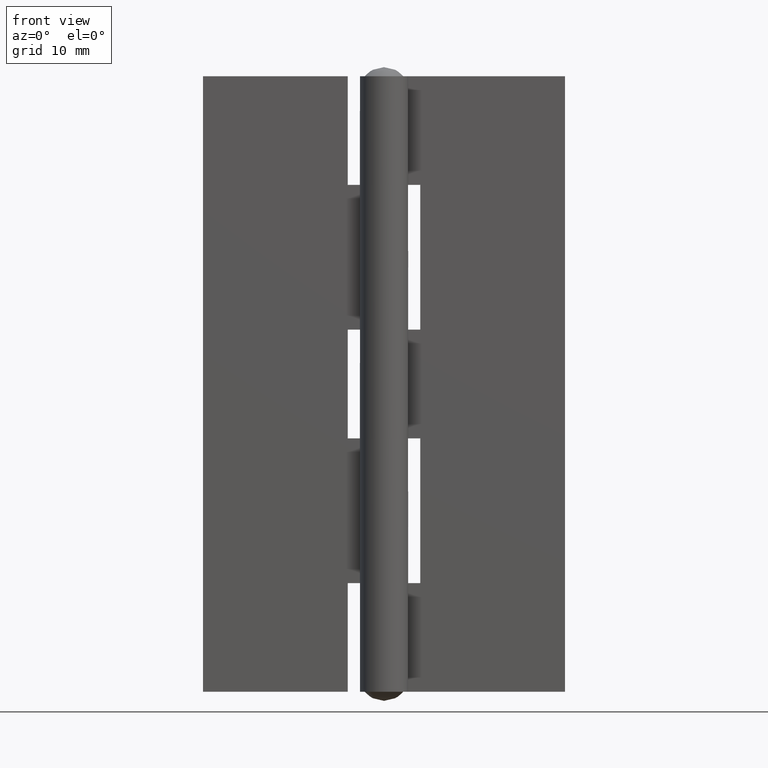
[diagram: clean part render]
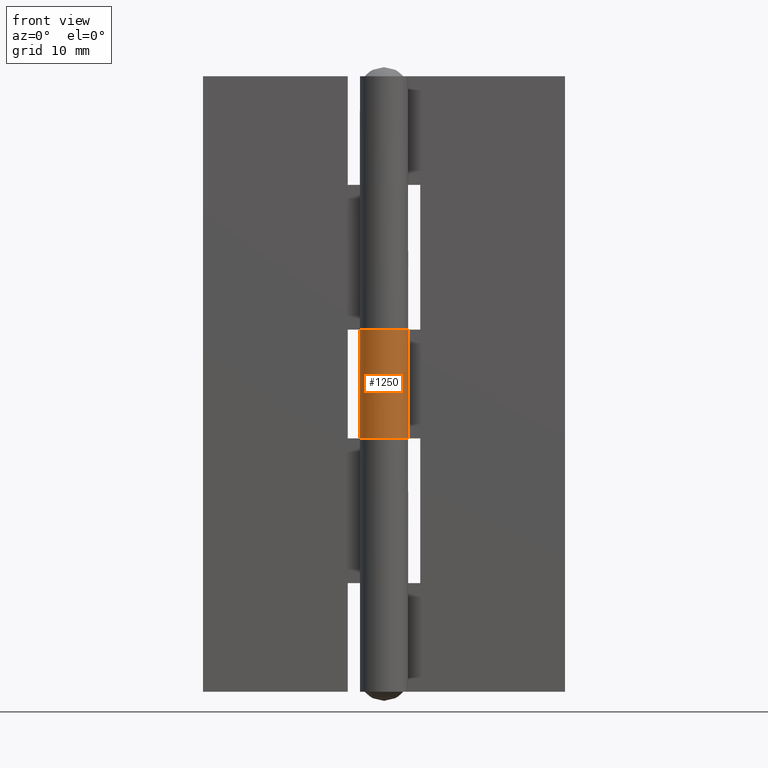
[diagram: same view with one face highlighted and labeled with its STEP entity id]
A machine part, front view. The second image highlights one B-rep face of the part: STEP entity #1250.
In plain terms, the highlighted face is a freeform B-spline surface patch.
Its self-contained STEP definition (entity closure, byte-faithful):
#876=CARTESIAN_POINT('',(1.636306817195370,1.150000000000000,30.0));
#877=VERTEX_POINT('',#876);
#883=CARTESIAN_POINT('',(1.636306817195370,1.150000000000000,21.0));
#884=VERTEX_POINT('',#883);
#885=CARTESIAN_POINT('',(1.636306817195370,1.150000000000000,30.0));
#886=CARTESIAN_POINT('',(1.636306817195370,1.150000000000000,21.0));
#887=QUASI_UNIFORM_CURVE('',1,(#885,#886),.UNSPECIFIED.,.F.,.U.);
#888=EDGE_CURVE('',#877,#884,#887,.T.);
#1157=CARTESIAN_POINT('',(0.083764134997650,1.998245122523285,30.225000000000009));
#1158=CARTESIAN_POINT('',(0.083764134997650,1.998245122523285,20.769375000000000));
#1159=CARTESIAN_POINT('',(-2.473872988646661,2.105458326191399,30.224999999999998));
#1160=CARTESIAN_POINT('',(-2.473872988646661,2.105458326191399,20.769374999999993));
#1161=CARTESIAN_POINT('',(-1.959153080758078,-0.402143265710211,30.225000000000009));
#1162=CARTESIAN_POINT('',(-1.959153080758078,-0.402143265710211,20.769375000000000));
#1163=CARTESIAN_POINT('',(-1.444433172869496,-2.909744857611822,30.224999999999998));
#1164=CARTESIAN_POINT('',(-1.444433172869496,-2.909744857611822,20.769374999999993));
#1165=CARTESIAN_POINT('',(0.864159919136231,-1.803670600236774,30.225000000000009));
#1166=CARTESIAN_POINT('',(0.864159919136231,-1.803670600236774,20.769375000000000));
#1167=CARTESIAN_POINT('',(3.172753011141957,-0.697596342861726,30.224999999999998));
#1168=CARTESIAN_POINT('',(3.172753011141957,-0.697596342861726,20.769374999999993));
#1169=CARTESIAN_POINT('',(1.541034669280728,1.274838087003552,30.225000000000009));
#1170=CARTESIAN_POINT('',(1.541034669280728,1.274838087003552,20.769375000000000));
#1178=(BOUNDED_SURFACE()B_SPLINE_SURFACE(1,2,((#1157,#1159,#1161,#1163,#1165,#1167,#1169),(#1158,#1160,#1162,#1164,#1166,#1168,#1170)),.UNSPECIFIED.,.F.,.F.,.U.)B_SPLINE_SURFACE_WITH_KNOTS((2,2),(3,2,2,3),(0.0,9.455625000000008),(0.0,3.901860708526890,7.803721417053780,11.705582125580669),.UNSPECIFIED.)GEOMETRIC_REPRESENTATION_ITEM()RATIONAL_B_SPLINE_SURFACE(((1.0,0.615661475325658,1.0,0.615661475325658,1.0,0.615661475325658,1.0),(1.0,0.615661475325658,1.0,0.615661475325658,1.0,0.615661475325658,1.0)))REPRESENTATION_ITEM('')SURFACE());
#1179=ORIENTED_EDGE('',*,*,#888,.F.);
#1180=CARTESIAN_POINT('',(1.431147E-014,2.0,30.0));
#1181=VERTEX_POINT('',#1180);
#1182=CARTESIAN_POINT('',(1.636306817195370,1.150000000000000,30.0));
#1183=CARTESIAN_POINT('',(1.772035410289195,0.957214126815485,29.999999999999989));
#1184=CARTESIAN_POINT('',(1.908511361782050,0.663464160738857,30.000000000000039));
#1185=CARTESIAN_POINT('',(1.995316973763503,0.227390914134791,30.000000000000050));
#1186=CARTESIAN_POINT('',(2.008315781283480,-0.092690811953223,29.999999999999929));
#1187=CARTESIAN_POINT('',(1.951675489990665,-0.506309613025347,30.000000000000050));
#1188=CARTESIAN_POINT('',(1.791310306606336,-0.939377759925445,30.000000000000181));
#1189=CARTESIAN_POINT('',(1.477019142766496,-1.384695396196866,30.000000000000011));
#1190=CARTESIAN_POINT('',(1.086546323679217,-1.704172001725138,29.999999999999680));
#1191=CARTESIAN_POINT('',(0.682113017224339,-1.892586381055921,30.000000000000760));
#1192=CARTESIAN_POINT('',(0.291001135378904,-1.992032911303596,29.999999999999361));
#1193=CARTESIAN_POINT('',(-0.085372953046976,-2.011354267455229,30.000000000000281));
#1194=CARTESIAN_POINT('',(-0.498381844469059,-1.950503793462616,29.999999999999879));
#1195=CARTESIAN_POINT('',(-0.879458683836190,-1.814044637547313,30.000000000000060));
#1196=CARTESIAN_POINT('',(-1.221507744626419,-1.598468641956051,30.0));
#1197=CARTESIAN_POINT('',(-1.506717936863597,-1.333026723259112,29.999999999999989));
#1198=CARTESIAN_POINT('',(-1.771130633299269,-0.973625635466734,30.000000000000039));
#1199=CARTESIAN_POINT('',(-1.939300702592110,-0.557891766309660,29.999999999999979));
#1200=CARTESIAN_POINT('',(-2.016978386874998,-0.062972233099497,30.000000000000011));
#1201=CARTESIAN_POINT('',(-1.982179838571816,0.412231146832216,29.999999999999972));
#1202=CARTESIAN_POINT('',(-1.793866341245599,0.938605456810714,30.000000000000089));
#1203=CARTESIAN_POINT('',(-1.503203748845539,1.350961295471035,29.999999999999801));
#1204=CARTESIAN_POINT('',(-1.111025392768223,1.686156781940039,30.000000000000529));
#1205=CARTESIAN_POINT('',(-0.623947711458176,1.932381329641993,29.999999999998739));
#1206=CARTESIAN_POINT('',(-0.221881686476417,2.000136564161428,30.000000000000860));
#1207=CARTESIAN_POINT('',(1.431147E-014,2.0,30.0));
#1208=B_SPLINE_CURVE_WITH_KNOTS('',3,(#1182,#1183,#1184,#1185,#1186,#1187,#1188,#1189,#1190,#1191,#1192,#1193,#1194,#1195,#1196,#1197,#1198,#1199,#1200,#1201,#1202,#1203,#1204,#1205,#1206,#1207),.UNSPECIFIED.,.F.,.U.,(4,1,1,1,1,1,1,1,1,1,1,1,1,1,1,1,1,1,1,1,1,1,1,4),(0.000000201473867,0.707223280285843,0.956841827539119,1.331273667577721,1.664097032060552,2.204944293009342,2.704141026150659,3.286565640552133,3.702600415240016,4.035421358272066,4.493059591541922,4.825885678588003,5.283497120579884,5.699484902424540,6.032310401956882,6.448347043526971,7.030791814883688,7.363620398992828,7.946040510060731,8.445234914008056,9.027683879653482,9.443714380838568,9.984561182065702,10.650178224110171),.UNSPECIFIED.);
#1209=EDGE_CURVE('',#877,#1181,#1208,.T.);
#1210=ORIENTED_EDGE('',*,*,#1209,.T.);
#1211=CARTESIAN_POINT('',(1.431147E-014,2.0,21.0));
#1212=VERTEX_POINT('',#1211);
#1213=CARTESIAN_POINT('',(1.431147E-014,2.0,30.0));
#1214=CARTESIAN_POINT('',(1.431147E-014,2.0,21.0));
#1215=QUASI_UNIFORM_CURVE('',1,(#1213,#1214),.UNSPECIFIED.,.F.,.U.);
#1216=EDGE_CURVE('',#1181,#1212,#1215,.T.);
#1217=ORIENTED_EDGE('',*,*,#1216,.T.);
#1218=CARTESIAN_POINT('',(1.431147E-014,2.0,21.0));
#1219=CARTESIAN_POINT('',(-0.221889482768808,2.000148630351799,20.999999999999989));
#1220=CARTESIAN_POINT('',(-0.596201038693656,1.937021170872924,20.999999999999989));
#1221=CARTESIAN_POINT('',(-1.024099937244358,1.731767714618256,21.000000000000089));
#1222=CARTESIAN_POINT('',(-1.315254659905377,1.517472017544006,20.999999999999840));
#1223=CARTESIAN_POINT('',(-1.550218240649923,1.280133665083264,21.000000000000320));
#1224=CARTESIAN_POINT('',(-1.795334814545913,0.924687907716517,20.999999999999691));
#1225=CARTESIAN_POINT('',(-1.980170112207822,0.440189165596485,21.000000000000121));
#1226=CARTESIAN_POINT('',(-2.016974756830170,-0.062975352588956,20.999999999999972));
#1227=CARTESIAN_POINT('',(-1.939297007635645,-0.557905762425624,21.000000000000011));
#1228=CARTESIAN_POINT('',(-1.786897232422709,-0.934646921571491,21.000000000000021));
#1229=CARTESIAN_POINT('',(-1.558179338156435,-1.266755634243877,20.999999999999961));
#1230=CARTESIAN_POINT('',(-1.347527833848543,-1.488892986800614,21.000000000000021));
#1231=CARTESIAN_POINT('',(-1.072068480453679,-1.700883612350041,21.000000000000011));
#1232=CARTESIAN_POINT('',(-0.738026499605807,-1.874417765313921,21.0));
#1233=CARTESIAN_POINT('',(-0.361909621073540,-1.978938000470702,21.000000000000011));
#1234=CARTESIAN_POINT('',(0.081832648844385,-2.016313785554720,21.000000000000011));
#1235=CARTESIAN_POINT('',(0.553344510502175,-1.947511338637648,21.0));
#1236=CARTESIAN_POINT('',(1.013682202868019,-1.744434815208075,20.999999999999989));
#1237=CARTESIAN_POINT('',(1.392729315695237,-1.459768154308020,21.000000000000021));
#1238=CARTESIAN_POINT('',(1.662114307977988,-1.138533020795445,20.999999999999979));
#1239=CARTESIAN_POINT('',(1.884743831173354,-0.721049804433882,21.000000000000139));
#1240=CARTESIAN_POINT('',(2.000500770576332,-0.287788392653915,20.999999999999549));
#1241=CARTESIAN_POINT('',(2.005673898889370,0.172311276407891,21.000000000000671));
#1242=CARTESIAN_POINT('',(1.915458472550572,0.651381122574856,20.999999999999019));
#1243=CARTESIAN_POINT('',(1.764020075125179,0.968544936226526,21.000000000000838));
#1244=CARTESIAN_POINT('',(1.636306817195370,1.150000000000000,21.0));
#1245=B_SPLINE_CURVE_WITH_KNOTS('',3,(#1218,#1219,#1220,#1221,#1222,#1223,#1224,#1225,#1226,#1227,#1228,#1229,#1230,#1231,#1232,#1233,#1234,#1235,#1236,#1237,#1238,#1239,#1240,#1241,#1242,#1243,#1244),.UNSPECIFIED.,.F.,.U.,(4,1,1,1,1,1,1,1,1,1,1,1,1,1,1,1,1,1,1,1,1,1,1,1,4),(0.000000201474082,0.665619977119004,1.123256379161107,1.414478936752039,1.747304870933810,2.121737957983793,2.704141026150870,3.286565640552345,3.619397250422511,4.201835316415870,4.493059591542143,4.825885678588235,5.117104416916953,5.533076856447536,5.949103628246338,6.281932212108861,6.864376983503563,7.363620398992966,7.779647169686984,8.278824088553630,8.611647768573290,9.194097927021989,9.610128428154866,9.984561182065727,10.650178224110171),.UNSPECIFIED.);
#1246=EDGE_CURVE('',#1212,#884,#1245,.T.);
#1247=ORIENTED_EDGE('',*,*,#1246,.T.);
#1248=EDGE_LOOP('',(#1179,#1210,#1217,#1247));
#1249=FACE_OUTER_BOUND('',#1248,.T.);
#1250=ADVANCED_FACE('',(#1249),#1178,.T.);